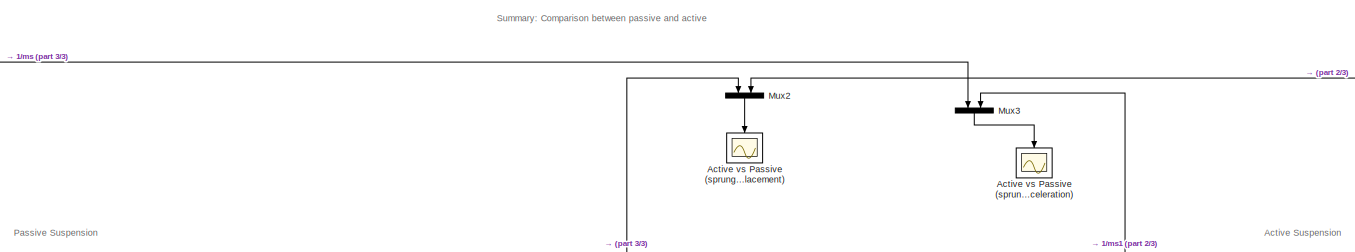
[diagram: root canvas - part 1/3, top center region]
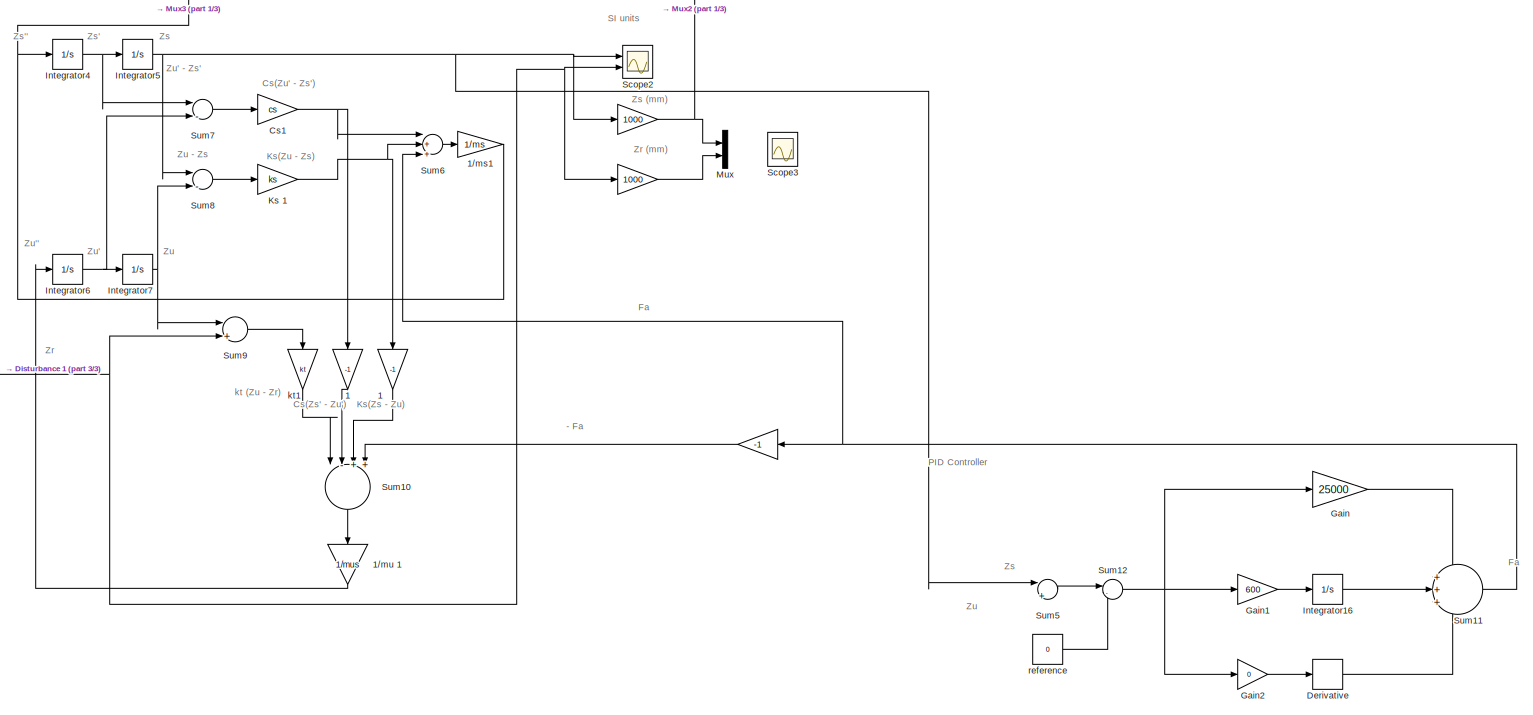
[diagram: root canvas - part 2/3, middle right region]
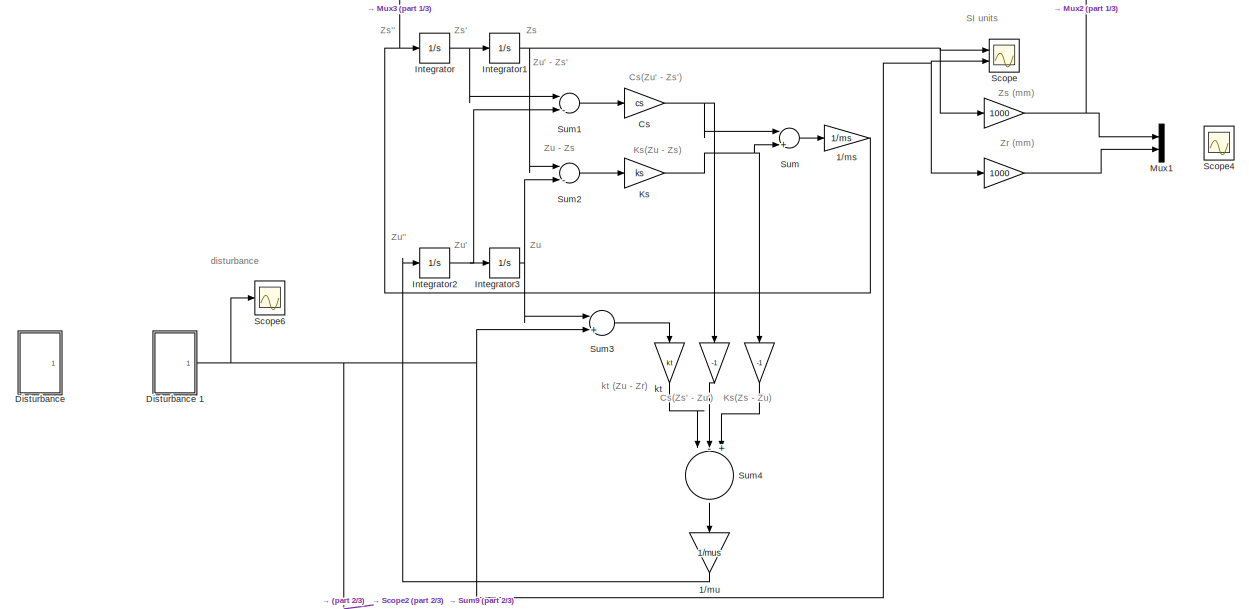
[diagram: root canvas - part 3/3, middle left region]
MODEL slx_f758f4e47eb3
KIND model
CONFIG AbsTol = auto
CONFIG EnableMultiTasking = off
CONFIG FixedStep = auto
CONFIG MaxStep = auto
CONFIG MinStep = auto
CONFIG RelTol = 1e-3
CONFIG SampleTimeConstraint = Unconstrained
CONFIG Solver = VariableStepAuto
CONFIG SolverName = VariableStepAuto
CONFIG StartTime = 0.0
CONFIG StopTime = 3
BLOCK [Gain]  
  Gain = -1
  OutDataTypeStr = Inherit: Inherit via internal rule
  ParamDataTypeStr = Inherit: Inherit via internal rule
  SaturateOnIntegerOverflow = off
BLOCK [Gain]  1
  Gain = -1
  OutDataTypeStr = Inherit: Inherit via internal rule
  ParamDataTypeStr = Inherit: Inherit via internal rule
  SaturateOnIntegerOverflow = off
BLOCK [Gain] 1//ms
  Gain = 1/ms
  OutDataTypeStr = Inherit: Inherit via internal rule
  ParamDataTypeStr = Inherit: Inherit via internal rule
  SaturateOnIntegerOverflow = off
BLOCK [Gain] 1//ms1
  Gain = 1/ms
  OutDataTypeStr = Inherit: Inherit via internal rule
  ParamDataTypeStr = Inherit: Inherit via internal rule
  SaturateOnIntegerOverflow = off
BLOCK [Gain] 1//mu 
  Gain = 1/mus
  OutDataTypeStr = Inherit: Inherit via internal rule
  ParamDataTypeStr = Inherit: Inherit via internal rule
  SaturateOnIntegerOverflow = off
BLOCK [Gain] 1//mu 1
  Gain = 1/mus
  OutDataTypeStr = Inherit: Inherit via internal rule
  ParamDataTypeStr = Inherit: Inherit via internal rule
  SaturateOnIntegerOverflow = off
BLOCK [Scope] Active vs Passive (sprung mass acceleration)
  Floating = off
  NumInputPorts = 1
  Ports = [1]
  ScopeSpecificationString = Simulink.scopes.TimeScopeBlockCfg('CurrentConfiguration', extmgr.ConfigurationSet(extmgr.Configuration('Core','General UI',true),extmgr.Configuration('Core','Source UI',true),extmgr.Configuration('Sources','WiredSimulink',true,'DataLoggingVariableName','ScopeData1'),extmgr.Configuration('Visuals','Time Domain',true,'SerializedDisplays',{struct('MinYLimReal','-19.67477','MaxYLimReal','34.10384','YL...<+1476ch>
BLOCK [Scope] Active vs Passive (sprung mass displacement)
  Floating = off
  NumInputPorts = 1
  Ports = [1]
  ScopeSpecificationString = Simulink.scopes.TimeScopeBlockCfg('CurrentConfiguration', extmgr.ConfigurationSet(extmgr.Configuration('Core','General UI',true),extmgr.Configuration('Core','Source UI',true),extmgr.Configuration('Sources','WiredSimulink',true,'DataLoggingVariableName','ScopeData1'),extmgr.Configuration('Visuals','Time Domain',true,'SerializedDisplays',{struct('MinYLimReal','-18.3588','MaxYLimReal','165.22916','YL...<+1471ch>
BLOCK [Gain] Cs
  Gain = cs
  OutDataTypeStr = Inherit: Inherit via internal rule
  ParamDataTypeStr = Inherit: Inherit via internal rule
  SaturateOnIntegerOverflow = off
BLOCK [Gain] Cs1
  Gain = cs
  OutDataTypeStr = Inherit: Inherit via internal rule
  ParamDataTypeStr = Inherit: Inherit via internal rule
  SaturateOnIntegerOverflow = off
BLOCK [Derivative] Derivative
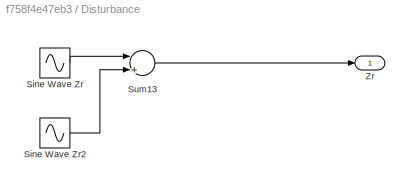
BLOCK [SubSystem] Disturbance 
  Ports = [0, 1]
  RequestExecContextInheritance = off
BLOCK [Sin] Disturbance /Sine Wave Zr
  Amplitude = 0.1
  Frequency = 4
  Ports = [0, 1]
  SampleTime = 0
BLOCK [Sin] Disturbance /Sine Wave Zr2
  Amplitude = 0.2
  Frequency = 0.8
  Ports = [0, 1]
  SampleTime = 0
BLOCK [Sum] Disturbance /Sum13
  InputSameDT = off
  Inputs = |++
  OutDataTypeStr = Inherit: Inherit via internal rule
  Ports = [2, 1]
  SaturateOnIntegerOverflow = off
BLOCK [Outport] Disturbance /Zr
  IconDisplay = Port number
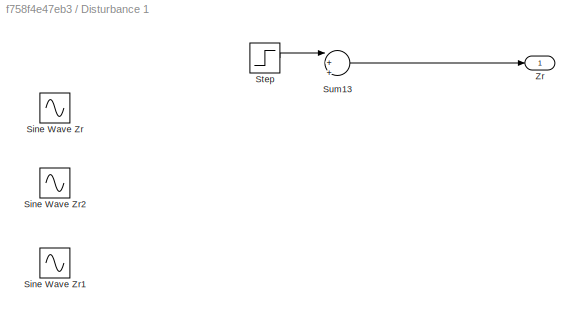
BLOCK [SubSystem] Disturbance 1
  Ports = [0, 1]
  RequestExecContextInheritance = off
BLOCK [Sin] Disturbance 1/Sine Wave Zr
  Amplitude = 0.2
  Frequency = 6
  Ports = [0, 1]
  SampleTime = 0
BLOCK [Sin] Disturbance 1/Sine Wave Zr1
  Amplitude = 0.01
  Frequency = 8
  Ports = [0, 1]
  SampleTime = 0
BLOCK [Sin] Disturbance 1/Sine Wave Zr2
  Amplitude = 0.2
  Frequency = 0.8
  Ports = [0, 1]
  SampleTime = 0
BLOCK [Step] Disturbance 1/Step
  After = 0.1
  SampleTime = 0
BLOCK [Sum] Disturbance 1/Sum13
  InputSameDT = off
  Inputs = |+++
  OutDataTypeStr = Inherit: Inherit via internal rule
  Ports = [3, 1]
  SaturateOnIntegerOverflow = off
BLOCK [Outport] Disturbance 1/Zr
  IconDisplay = Port number
BLOCK [Gain] Gain
  Gain = 25000
  OutDataTypeStr = Inherit: Inherit via internal rule
  ParamDataTypeStr = Inherit: Inherit via internal rule
  SaturateOnIntegerOverflow = off
BLOCK [Gain] Gain1
  Gain = 600
  OutDataTypeStr = Inherit: Inherit via internal rule
  ParamDataTypeStr = Inherit: Inherit via internal rule
  SaturateOnIntegerOverflow = off
BLOCK [Gain] Gain2
  Gain = 0
  OutDataTypeStr = Inherit: Inherit via internal rule
  ParamDataTypeStr = Inherit: Inherit via internal rule
  SaturateOnIntegerOverflow = off
BLOCK [Integrator] Integrator
  Ports = [1, 1]
BLOCK [Integrator] Integrator1
  Ports = [1, 1]
BLOCK [Integrator] Integrator16
  Ports = [1, 1]
BLOCK [Integrator] Integrator2
  Ports = [1, 1]
BLOCK [Integrator] Integrator3
  Ports = [1, 1]
BLOCK [Integrator] Integrator4
  Ports = [1, 1]
BLOCK [Integrator] Integrator5
  Ports = [1, 1]
BLOCK [Integrator] Integrator6
  Ports = [1, 1]
BLOCK [Integrator] Integrator7
  Ports = [1, 1]
BLOCK [Gain] Ks 
  Gain = ks
  OutDataTypeStr = Inherit: Inherit via internal rule
  ParamDataTypeStr = Inherit: Inherit via internal rule
  SaturateOnIntegerOverflow = off
BLOCK [Gain] Ks 1
  Gain = ks
  OutDataTypeStr = Inherit: Inherit via internal rule
  ParamDataTypeStr = Inherit: Inherit via internal rule
  SaturateOnIntegerOverflow = off
BLOCK [Mux] Mux
  DisplayOption = bar
  Inputs = 2
  Ports = [2, 1]
BLOCK [Mux] Mux1
  DisplayOption = bar
  Inputs = 2
  Ports = [2, 1]
BLOCK [Mux] Mux2
  DisplayOption = bar
  Inputs = 2
  Ports = [2, 1]
BLOCK [Mux] Mux3
  DisplayOption = bar
  Inputs = 2
  Ports = [2, 1]
BLOCK [Scope] Scope
  Floating = off
  NumInputPorts = 2
  Ports = [2]
  ScopeSpecificationString = Simulink.scopes.TimeScopeBlockCfg('CurrentConfiguration', extmgr.ConfigurationSet(extmgr.Configuration('Core','General UI',true),extmgr.Configuration('Core','Source UI',true),extmgr.Configuration('Sources','WiredSimulink',true),extmgr.Configuration('Visuals','Time Domain',true,'SerializedDisplays',{struct('MinYLimReal','-0.57072','MaxYLimReal','0.74571','YLabelReal','','MinYLimMag','0.00000','MaxY...<+1384ch>
BLOCK [Scope] Scope2
  Floating = off
  NumInputPorts = 2
  Ports = [2]
  ScopeSpecificationString = Simulink.scopes.TimeScopeBlockCfg('CurrentConfiguration', extmgr.ConfigurationSet(extmgr.Configuration('Core','General UI',true),extmgr.Configuration('Core','Source UI',true),extmgr.Configuration('Sources','WiredSimulink',true,'DataLoggingVariableName','ScopeData2'),extmgr.Configuration('Visuals','Time Domain',true,'SerializedDisplays',{struct('MinYLimReal','-0.38073','MaxYLimReal','0.38107','YLab...<+1422ch>
BLOCK [Scope] Scope3
  Floating = off
  NumInputPorts = 1
  Ports = [1]
  ScopeSpecificationString = Simulink.scopes.TimeScopeBlockCfg('CurrentConfiguration', extmgr.ConfigurationSet(extmgr.Configuration('Core','General UI',true),extmgr.Configuration('Core','Source UI',true),extmgr.Configuration('Sources','WiredSimulink',true,'DataLoggingVariableName','ScopeData3'),extmgr.Configuration('Visuals','Time Domain',true,'SerializedDisplays',{struct('MinYLimReal','-475.38888','MaxYLimReal','609.09427','...<+1422ch>
BLOCK [Scope] Scope4
  Floating = off
  NumInputPorts = 1
  Ports = [1]
  ScopeSpecificationString = Simulink.scopes.TimeScopeBlockCfg('CurrentConfiguration', extmgr.ConfigurationSet(extmgr.Configuration('Core','General UI',true),extmgr.Configuration('Core','Source UI',true),extmgr.Configuration('Sources','WiredSimulink',true,'DataLoggingVariableName','ScopeData4'),extmgr.Configuration('Visuals','Time Domain',true,'SerializedDisplays',{struct('MinYLimReal','-1.00000','MaxYLimReal','1.00000','YLab...<+1405ch>
BLOCK [Scope] Scope6
  Floating = off
  NumInputPorts = 1
  Ports = [1]
  ScopeSpecificationString = Simulink.scopes.TimeScopeBlockCfg('CurrentConfiguration', extmgr.ConfigurationSet(extmgr.Configuration('Core','General UI',true),extmgr.Configuration('Core','Source UI',true),extmgr.Configuration('Sources','WiredSimulink',true,'DataLoggingVariableName','ScopeData1'),extmgr.Configuration('Visuals','Time Domain',true,'SerializedDisplays',{struct('MinYLimReal','-0.0125','MaxYLimReal','0.1125','YLabel...<+1423ch>
BLOCK [Sum] Sum
  InputSameDT = off
  Inputs = |++
  OutDataTypeStr = Inherit: Inherit via internal rule
  Ports = [2, 1]
  SaturateOnIntegerOverflow = off
BLOCK [Sum] Sum1
  InputSameDT = off
  Inputs = |-+
  OutDataTypeStr = Inherit: Inherit via internal rule
  Ports = [2, 1]
  SaturateOnIntegerOverflow = off
BLOCK [Sum] Sum10
  InputSameDT = off
  Inputs = |-+++
  OutDataTypeStr = Inherit: Inherit via internal rule
  Ports = [4, 1]
  SaturateOnIntegerOverflow = off
BLOCK [Sum] Sum11
  IconShape = round
  InputSameDT = off
  Inputs = +++
  OutDataTypeStr = Inherit: Inherit via internal rule
  Ports = [3, 1]
  SaturateOnIntegerOverflow = off
BLOCK [Sum] Sum12
  IconShape = round
  InputSameDT = off
  Inputs = |-+
  OutDataTypeStr = Inherit: Inherit via internal rule
  Ports = [2, 1]
  SaturateOnIntegerOverflow = off
BLOCK [Sum] Sum2
  InputSameDT = off
  Inputs = |-+
  OutDataTypeStr = Inherit: Inherit via internal rule
  Ports = [2, 1]
  SaturateOnIntegerOverflow = off
BLOCK [Sum] Sum3
  InputSameDT = off
  Inputs = |+-
  OutDataTypeStr = Inherit: Inherit via internal rule
  Ports = [2, 1]
  SaturateOnIntegerOverflow = off
BLOCK [Sum] Sum4
  InputSameDT = off
  Inputs = |-++
  OutDataTypeStr = Inherit: Inherit via internal rule
  Ports = [3, 1]
  SaturateOnIntegerOverflow = off
BLOCK [Sum] Sum5
  InputSameDT = off
  Inputs = |+-
  OutDataTypeStr = Inherit: Inherit via internal rule
  Ports = [2, 1]
  SaturateOnIntegerOverflow = off
BLOCK [Sum] Sum6
  InputSameDT = off
  Inputs = |+++
  OutDataTypeStr = Inherit: Inherit via internal rule
  Ports = [3, 1]
  SaturateOnIntegerOverflow = off
BLOCK [Sum] Sum7
  InputSameDT = off
  Inputs = |-+
  OutDataTypeStr = Inherit: Inherit via internal rule
  Ports = [2, 1]
  SaturateOnIntegerOverflow = off
BLOCK [Sum] Sum8
  InputSameDT = off
  Inputs = |-+
  OutDataTypeStr = Inherit: Inherit via internal rule
  Ports = [2, 1]
  SaturateOnIntegerOverflow = off
BLOCK [Sum] Sum9
  InputSameDT = off
  Inputs = |+-
  OutDataTypeStr = Inherit: Inherit via internal rule
  Ports = [2, 1]
  SaturateOnIntegerOverflow = off
BLOCK [Gain] kt
  Gain = kt
  OutDataTypeStr = Inherit: Inherit via internal rule
  ParamDataTypeStr = Inherit: Inherit via internal rule
  SaturateOnIntegerOverflow = off
BLOCK [Gain] kt1
  Gain = kt
  OutDataTypeStr = Inherit: Inherit via internal rule
  ParamDataTypeStr = Inherit: Inherit via internal rule
  SaturateOnIntegerOverflow = off
BLOCK [Constant] reference
  Value = 0
ANNOTATION (root): - Fa
ANNOTATION (root): Active Suspension
ANNOTATION (root): Passive Suspension
ANNOTATION (root): Summary: Comparison between passive and active
ANNOTATION (root): Cs(Zs' - Zu')
ANNOTATION (root): Cs(Zu' - Zs')
ANNOTATION (root): Fa
ANNOTATION (root): Ks(Zs - Zu)
ANNOTATION (root): Ks(Zu - Zs)
ANNOTATION (root): PID Controller
ANNOTATION (root): SI units
ANNOTATION (root): Zr
ANNOTATION (root): Zr (mm)
ANNOTATION (root): Zs
ANNOTATION (root): Zs (mm)
ANNOTATION (root): Zs'
ANNOTATION (root): Zs''
ANNOTATION (root): Zu
ANNOTATION (root): Zu - Zs
ANNOTATION (root): Zu'
ANNOTATION (root): Zu' - Zs'
ANNOTATION (root): Zu''
ANNOTATION (root): disturbance
ANNOTATION (root): kt (Zu - Zr)
NET  1:1 -> Sum10:2, Sum10:3
NET  :1 -> Mux1:1, Mux1:2, Mux2:1, Mux2:2, Mux:1, Mux:2, Sum10:4, Sum4:2, Sum4:3
NET 1//ms1:1 -> Integrator4:1, Mux3:2
NET 1//ms:1 -> Integrator:1, Mux3:1
LINE 1//mu 1:1 -> Integrator6:1
LINE 1//mu :1 -> Integrator2:1
NET Cs1:1 ->  1:1, Sum6:1
NET Cs:1 ->  :1, Sum:1
LINE Derivative:1 -> Sum11:3
LINE Disturbance /Sine Wave Zr2:1 -> Disturbance /Sum13:2
LINE Disturbance /Sine Wave Zr:1 -> Disturbance /Sum13:1
LINE Disturbance /Sum13:1 -> Disturbance /Zr:1
LINE Disturbance 1/Step:1 -> Disturbance 1/Sum13:1
LINE Disturbance 1/Sum13:1 -> Disturbance 1/Zr:1
NET Disturbance 1:1 ->  :1, Scope2:2, Scope6:1, Scope:2, Sum3:2, Sum9:2
LINE Gain1:1 -> Integrator16:1
LINE Gain2:1 -> Derivative:1
LINE Gain:1 -> Sum11:1
LINE Integrator16:1 -> Sum11:2
NET Integrator1:1 ->  :1, Scope:1, Sum2:1
NET Integrator2:1 -> Integrator3:1, Sum1:2
NET Integrator3:1 -> Sum2:2, Sum3:1
NET Integrator4:1 -> Integrator5:1, Sum7:1
NET Integrator5:1 ->  :1, Scope2:1, Sum5:1, Sum8:1
NET Integrator6:1 -> Integrator7:1, Sum7:2
NET Integrator7:1 -> Sum8:2, Sum9:1
NET Integrator:1 -> Integrator1:1, Sum1:1
NET Ks 1:1 ->  1:1, Sum6:2
NET Ks :1 ->  :1, Sum:2
LINE Mux2:1 -> Active vs Passive (sprung mass displacement):1
LINE Mux3:1 -> Active vs Passive (sprung mass acceleration):1
LINE Sum10:1 -> 1//mu 1:1
NET Sum11:1 ->  :1, Sum6:3
NET Sum12:1 -> Gain1:1, Gain2:1, Gain:1
LINE Sum1:1 -> Cs:1
LINE Sum2:1 -> Ks :1
LINE Sum3:1 -> kt:1
LINE Sum4:1 -> 1//mu :1
LINE Sum5:1 -> Sum12:1
LINE Sum6:1 -> 1//ms1:1
LINE Sum7:1 -> Cs1:1
LINE Sum8:1 -> Ks 1:1
LINE Sum9:1 -> kt1:1
LINE Sum:1 -> 1//ms:1
LINE kt1:1 -> Sum10:1
LINE kt:1 -> Sum4:1
LINE reference:1 -> Sum12:2
note: NET lines group one-source signal fan-out (src -> all destinations, sorted); 1:1 wires keep LINE
